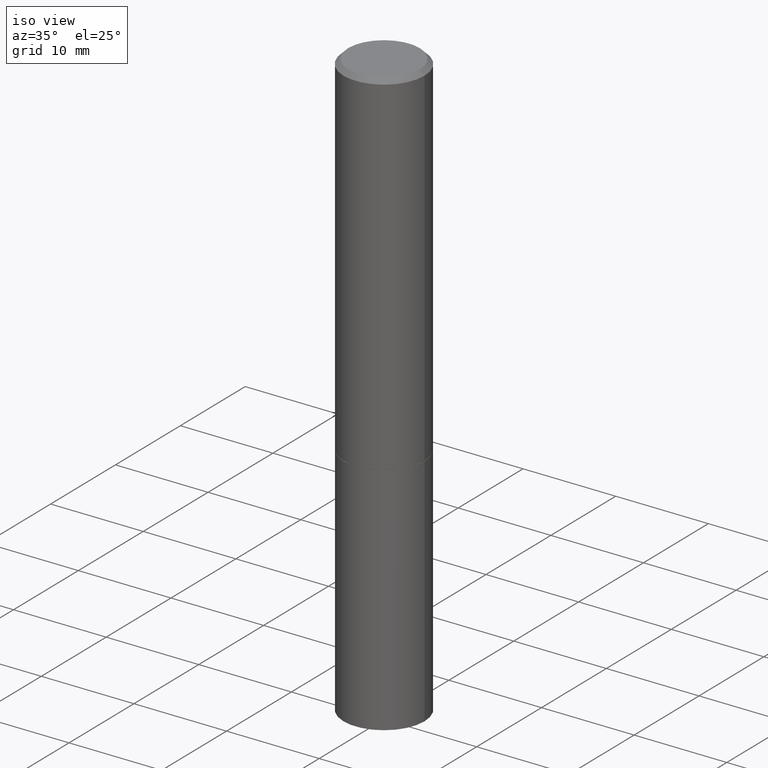
[diagram: clean part render]
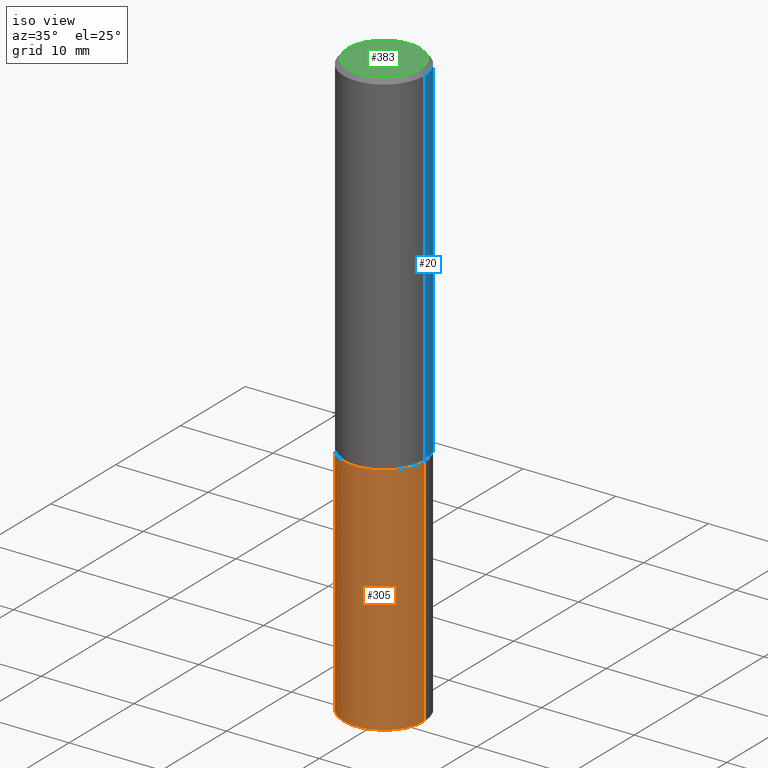
[diagram: same view with three faces highlighted in distinct colors, each labeled with its STEP entity id]
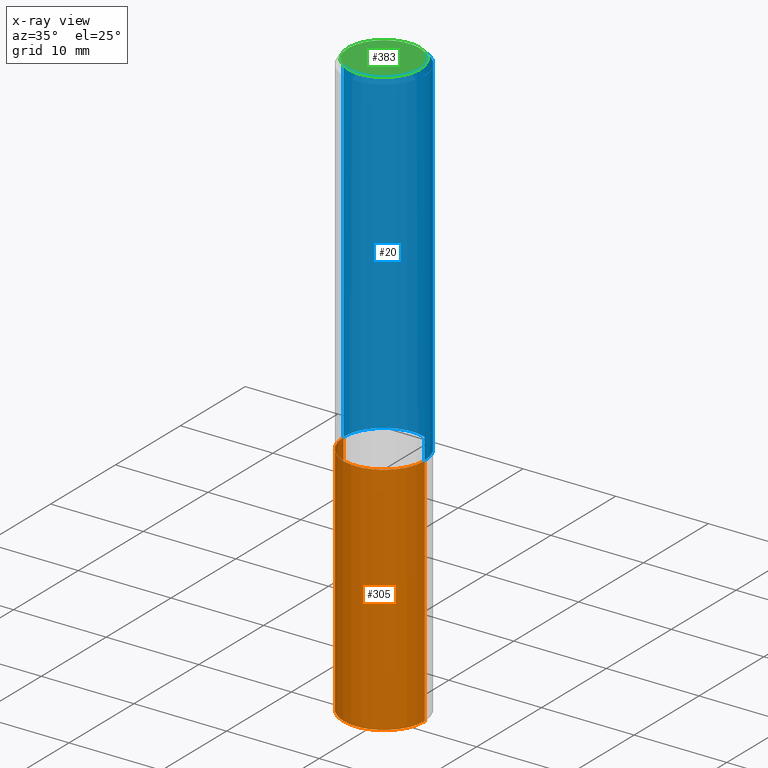
[diagram: x-ray of the same camera — body ghosted, the three highlighted faces saturated]
A machine part, iso view with three faces highlighted in distinct colors.
The next image is the same camera in x-ray (body ghosted, the three faces saturated) — at least one of them is partly hidden behind the body in this view.
Their STEP definitions:

[orange] entity #305 — the highlighted cylindrical surface (partial cylindrical patch) has radius 4.3663 mm, axis along (-0, 0, 1).
#5 = EDGE_CURVE ( 'NONE', #55, #303, #324, .T. ) ;
#14 = DIRECTION ( 'NONE',  ( 1.000000000000000000, -6.982962677686266711E-15, 4.876176775795936353E-29 ) ) ;
#27 = CIRCLE ( 'NONE', #284, 0.1718999999999999695 ) ;
#41 = VECTOR ( 'NONE', #95, 39.37007874015748143 ) ;
#55 = VERTEX_POINT ( 'NONE', #150 ) ;
#67 = CARTESIAN_POINT ( 'NONE',  ( 0.1718999999999999695, -6.437593292558987418E-15, -1.500000000000000222 ) ) ;
#76 = LINE ( 'NONE', #191, #240 ) ;
#95 = DIRECTION ( 'NONE',  ( -2.445468806185136877E-29, 3.491481338843145188E-15, 1.000000000000000000 ) ) ;
#106 = VERTEX_POINT ( 'NONE', #207 ) ;
#117 = ORIENTED_EDGE ( 'NONE', *, *, #186, .T. ) ;
#136 = DIRECTION ( 'NONE',  ( -2.445468806185136597E-29, 3.491481338843145583E-15, 1.000000000000000000 ) ) ;
#139 = DIRECTION ( 'NONE',  ( -2.445468806185136877E-29, 3.491481338843145188E-15, 1.000000000000000000 ) ) ;
#146 = EDGE_CURVE ( 'NONE', #238, #55, #367, .T. ) ;
#150 = CARTESIAN_POINT ( 'NONE',  ( -0.1718999999999999695, -5.761539714914678571E-15, -1.500000000000000222 ) ) ;
#176 = CARTESIAN_POINT ( 'NONE',  ( 3.668203209277704895E-29, -5.237222008264718177E-15, -1.500000000000000222 ) ) ;
#179 = ORIENTED_EDGE ( 'NONE', *, *, #5, .F. ) ;
#182 = ORIENTED_EDGE ( 'NONE', *, *, #146, .F. ) ;
#186 = EDGE_CURVE ( 'NONE', #106, #303, #76, .T. ) ;
#187 = CARTESIAN_POINT ( 'NONE',  ( 6.113672015462842613E-29, -8.728703347107864943E-15, -2.500000000000000000 ) ) ;
#191 = CARTESIAN_POINT ( 'NONE',  ( 0.1718999999999999695, -1.200371284294269044E-15, 8.382147877593213079E-30 ) ) ;
#207 = CARTESIAN_POINT ( 'NONE',  ( 0.1718999999999998030, -9.908022952924788464E-15, -2.500000000000000000 ) ) ;
#228 = DIRECTION ( 'NONE',  ( 1.000000000000000000, -6.982962677686268288E-15, 0.000000000000000000 ) ) ;
#232 = AXIS2_PLACEMENT_3D ( 'NONE', #335, #371, #14 ) ;
#238 = VERTEX_POINT ( 'NONE', #252 ) ;
#240 = VECTOR ( 'NONE', #139, 39.37007874015748143 ) ;
#252 = CARTESIAN_POINT ( 'NONE',  ( -0.1718999999999998030, -7.528332062813596490E-15, -2.500000000000000000 ) ) ;
#253 = CYLINDRICAL_SURFACE ( 'NONE', #232, 0.1718999999999999695 ) ;
#281 = DIRECTION ( 'NONE',  ( 1.000000000000000000, -6.982962677686268288E-15, 0.000000000000000000 ) ) ;
#284 = AXIS2_PLACEMENT_3D ( 'NONE', #187, #136, #281 ) ;
#302 = EDGE_LOOP ( 'NONE', ( #182, #329, #117, #179 ) ) ;
#303 = VERTEX_POINT ( 'NONE', #67 ) ;
#304 = FACE_OUTER_BOUND ( 'NONE', #302, .T. ) ;
#305 = ADVANCED_FACE ( 'NONE', ( #304 ), #253, .T. ) ;
#318 = EDGE_CURVE ( 'NONE', #238, #106, #27, .T. ) ;
#324 = CIRCLE ( 'NONE', #375, 0.1718999999999999695 ) ;
#329 = ORIENTED_EDGE ( 'NONE', *, *, #318, .T. ) ;
#335 = CARTESIAN_POINT ( 'NONE',  ( 0.000000000000000000, 0.000000000000000000, 0.000000000000000000 ) ) ;
#342 = CARTESIAN_POINT ( 'NONE',  ( -0.1718999999999999695, 1.221422962771612003E-15, -8.455649420148183180E-30 ) ) ;
#357 = DIRECTION ( 'NONE',  ( -2.445468806185136597E-29, 3.491481338843145583E-15, 1.000000000000000000 ) ) ;
#367 = LINE ( 'NONE', #342, #41 ) ;
#371 = DIRECTION ( 'NONE',  ( -2.445468806185136597E-29, 3.491481338843145583E-15, 1.000000000000000000 ) ) ;
#375 = AXIS2_PLACEMENT_3D ( 'NONE', #176, #357, #228 ) ;

[blue] entity #20 — the highlighted cylindrical surface (partial cylindrical patch) has radius 4.3663 mm, axis along (-0, 0, 1).
#4 = DIRECTION ( 'NONE',  ( -2.445468806185136877E-29, 3.491481338843145188E-15, 1.000000000000000000 ) ) ;
#15 = ORIENTED_EDGE ( 'NONE', *, *, #185, .F. ) ;
#16 = CIRCLE ( 'NONE', #119, 0.1718999999999999695 ) ;
#20 = ADVANCED_FACE ( 'NONE', ( #110 ), #30, .T. ) ;
#30 = CYLINDRICAL_SURFACE ( 'NONE', #48, 0.1718999999999998862 ) ;
#38 = DIRECTION ( 'NONE',  ( -2.445468806185136597E-29, 3.491481338843145583E-15, 1.000000000000000000 ) ) ;
#48 = AXIS2_PLACEMENT_3D ( 'NONE', #85, #322, #346 ) ;
#66 = CARTESIAN_POINT ( 'NONE',  ( -0.1718999999999999695, -1.430357114079755851E-15, -1.499000000000000110 ) ) ;
#80 = CARTESIAN_POINT ( 'NONE',  ( 0.1718999999999998862, -1.200371284294268255E-15, 8.382147877593207473E-30 ) ) ;
#84 = CARTESIAN_POINT ( 'NONE',  ( -0.1718999999999998030, 1.130541657517404957E-15, -0.02000000000000004205 ) ) ;
#85 = CARTESIAN_POINT ( 'NONE',  ( 0.000000000000000000, 0.000000000000000000, 0.000000000000000000 ) ) ;
#89 = VERTEX_POINT ( 'NONE', #84 ) ;
#97 = CARTESIAN_POINT ( 'NONE',  ( -0.1718999999999998862, 1.221422962771611411E-15, -8.455649420148177574E-30 ) ) ;
#110 = FACE_OUTER_BOUND ( 'NONE', #242, .T. ) ;
#119 = AXIS2_PLACEMENT_3D ( 'NONE', #141, #312, #336 ) ;
#129 = VERTEX_POINT ( 'NONE', #380 ) ;
#141 = CARTESIAN_POINT ( 'NONE',  ( 3.665757740471519853E-29, -5.233730526925875958E-15, -1.499000000000000110 ) ) ;
#158 = VECTOR ( 'NONE', #4, 39.37007874015748143 ) ;
#160 = LINE ( 'NONE', #97, #276 ) ;
#174 = CIRCLE ( 'NONE', #293, 0.1718999999999998030 ) ;
#185 = EDGE_CURVE ( 'NONE', #129, #334, #226, .T. ) ;
#210 = ORIENTED_EDGE ( 'NONE', *, *, #306, .F. ) ;
#220 = CARTESIAN_POINT ( 'NONE',  ( 4.890937612370283668E-31, -6.982962677686305168E-17, -0.02000000000000004205 ) ) ;
#226 = LINE ( 'NONE', #80, #158 ) ;
#242 = EDGE_LOOP ( 'NONE', ( #351, #384, #210, #15 ) ) ;
#250 = CARTESIAN_POINT ( 'NONE',  ( 0.1718999999999998030, -1.249149232593788003E-15, -0.02000000000000004205 ) ) ;
#276 = VECTOR ( 'NONE', #341, 39.37007874015748143 ) ;
#279 = VERTEX_POINT ( 'NONE', #66 ) ;
#280 = EDGE_CURVE ( 'NONE', #129, #279, #16, .T. ) ;
#293 = AXIS2_PLACEMENT_3D ( 'NONE', #220, #38, #337 ) ;
#306 = EDGE_CURVE ( 'NONE', #334, #89, #174, .T. ) ;
#312 = DIRECTION ( 'NONE',  ( -2.445468806185136597E-29, 3.491481338843145583E-15, 1.000000000000000000 ) ) ;
#322 = DIRECTION ( 'NONE',  ( -2.445468806185136597E-29, 3.491481338843145583E-15, 1.000000000000000000 ) ) ;
#334 = VERTEX_POINT ( 'NONE', #250 ) ;
#336 = DIRECTION ( 'NONE',  ( 1.000000000000000000, -6.982962677686268288E-15, 0.000000000000000000 ) ) ;
#337 = DIRECTION ( 'NONE',  ( 1.000000000000000000, -6.982962677686267499E-15, 0.000000000000000000 ) ) ;
#341 = DIRECTION ( 'NONE',  ( -2.445468806185136877E-29, 3.491481338843145188E-15, 1.000000000000000000 ) ) ;
#346 = DIRECTION ( 'NONE',  ( 1.000000000000000000, -6.982962677686265922E-15, 4.876176775795935232E-29 ) ) ;
#350 = EDGE_CURVE ( 'NONE', #279, #89, #160, .T. ) ;
#351 = ORIENTED_EDGE ( 'NONE', *, *, #280, .T. ) ;
#380 = CARTESIAN_POINT ( 'NONE',  ( 0.1718999999999999695, -6.434101811220145200E-15, -1.499000000000000110 ) ) ;
#384 = ORIENTED_EDGE ( 'NONE', *, *, #350, .T. ) ;

[green] entity #383 — the highlighted planar face has unit normal (0, -0, -1).
#3 = ORIENTED_EDGE ( 'NONE', *, *, #88, .T. ) ;
#17 = CARTESIAN_POINT ( 'NONE',  ( -1.043851414335219820E-46, 1.490343170380447200E-32, 4.268512490100411279E-18 ) ) ;
#79 = VERTEX_POINT ( 'NONE', #360 ) ;
#88 = EDGE_CURVE ( 'NONE', #79, #211, #347, .T. ) ;
#90 = DIRECTION ( 'NONE',  ( 1.000000000000000000, -6.982962677686266711E-15, 4.876272761356889874E-29 ) ) ;
#92 = DIRECTION ( 'NONE',  ( -1.000000000000000000, 6.982962677686265922E-15, -4.876176775795935793E-29 ) ) ;
#93 = CARTESIAN_POINT ( 'NONE',  ( 1.060712030740542448E-15, 0.1518999999999998129, -5.282217591252229826E-16 ) ) ;
#125 = CARTESIAN_POINT ( 'NONE',  ( -1.043851414335219820E-46, 1.490343170380447200E-32, 4.268512490100411279E-18 ) ) ;
#140 = FACE_OUTER_BOUND ( 'NONE', #154, .T. ) ;
#149 = AXIS2_PLACEMENT_3D ( 'NONE', #125, #267, #352 ) ;
#154 = EDGE_LOOP ( 'NONE', ( #266, #3 ) ) ;
#183 = CIRCLE ( 'NONE', #308, 0.1518999999999998129 ) ;
#192 = DIRECTION ( 'NONE',  ( 2.438088387897960049E-29, -3.491481338843145188E-15, -1.000000000000000000 ) ) ;
#211 = VERTEX_POINT ( 'NONE', #283 ) ;
#216 = EDGE_CURVE ( 'NONE', #211, #79, #183, .T. ) ;
#245 = DIRECTION ( 'NONE',  ( -2.445468806185136597E-29, 3.491481338843145583E-15, 1.000000000000000000 ) ) ;
#266 = ORIENTED_EDGE ( 'NONE', *, *, #216, .T. ) ;
#267 = DIRECTION ( 'NONE',  ( -2.445468806185136597E-29, 3.491481338843145583E-15, 1.000000000000000000 ) ) ;
#283 = CARTESIAN_POINT ( 'NONE',  ( -0.1518999999999998129, 1.095626844128973702E-15, 4.268512490092870878E-18 ) ) ;
#308 = AXIS2_PLACEMENT_3D ( 'NONE', #17, #245, #90 ) ;
#330 = AXIS2_PLACEMENT_3D ( 'NONE', #93, #192, #92 ) ;
#347 = CIRCLE ( 'NONE', #149, 0.1518999999999998129 ) ;
#352 = DIRECTION ( 'NONE',  ( 1.000000000000000000, -6.982962677686266711E-15, 4.876272761356889874E-29 ) ) ;
#360 = CARTESIAN_POINT ( 'NONE',  ( 0.1518999999999998129, -1.145629439227641220E-15, 4.268512490108125784E-18 ) ) ;
#369 = PLANE ( 'NONE',  #330 ) ;
#383 = ADVANCED_FACE ( 'NONE', ( #140 ), #369, .F. ) ;